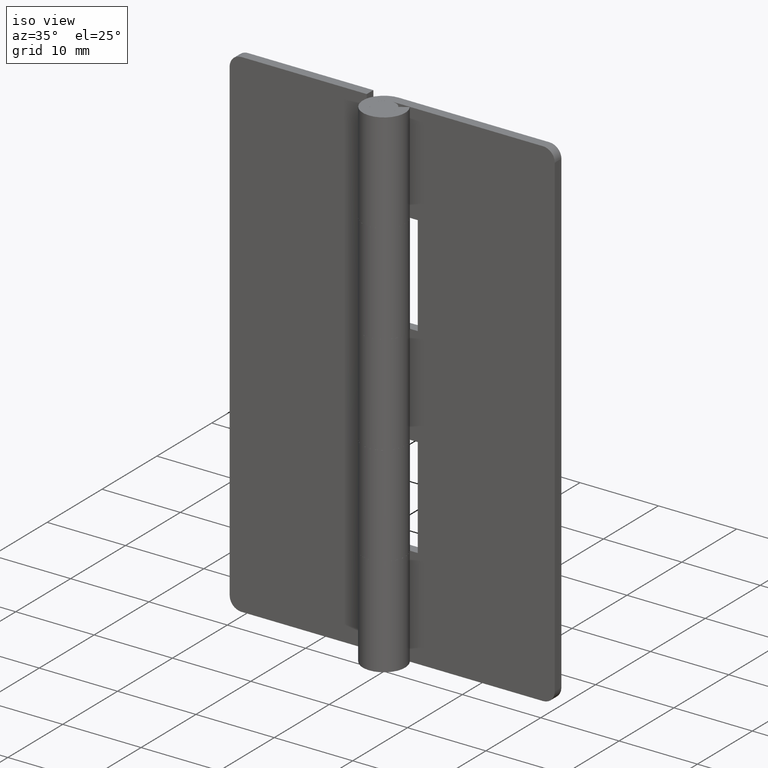
[diagram: clean part render]
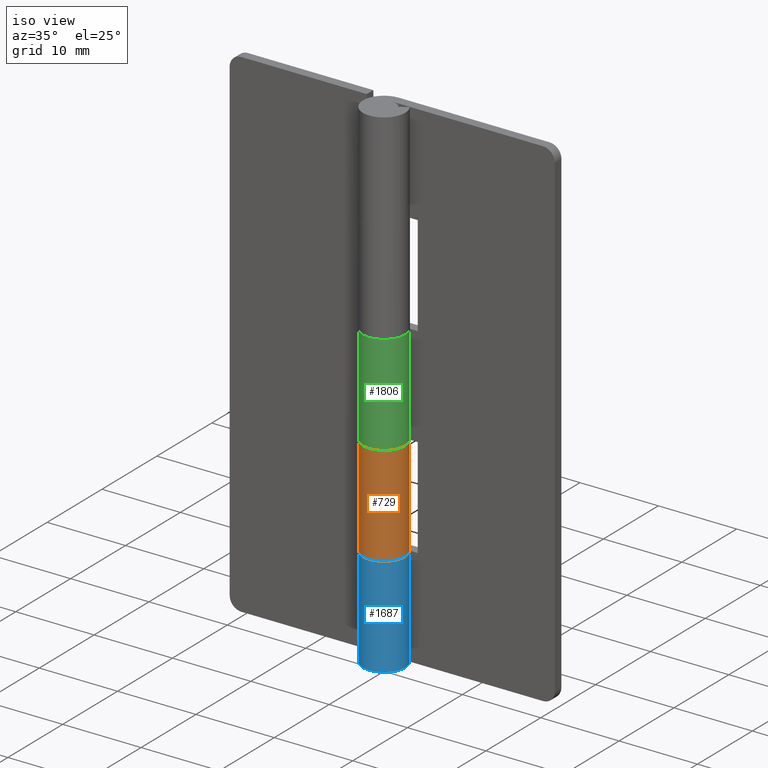
[diagram: same view with three faces highlighted in distinct colors, each labeled with its STEP entity id]
A machine part, iso view with three faces highlighted in distinct colors.
Their STEP definitions:

[orange] entity #729 — the highlighted face is a freeform B-spline surface patch.
#277=CARTESIAN_POINT('',(-2.277609580239995,1.450000000000000,25.599990999999900));
#278=VERTEX_POINT('',#277);
#279=CARTESIAN_POINT('',(0.0,2.700001000000000,25.599990999999900));
#280=VERTEX_POINT('',#279);
#281=CARTESIAN_POINT('',(-2.277609580239994,1.450000000000000,25.599990999999900));
#282=CARTESIAN_POINT('',(-3.402761166349925,-0.317348987411176,25.599990999999900));
#283=CARTESIAN_POINT('',(-1.970202425244974,-1.846160286529808,25.599990999999900));
#284=CARTESIAN_POINT('',(-0.537643684140022,-3.374971585648441,25.599990999999900));
#285=CARTESIAN_POINT('',(1.299038865854482,-2.366960799210773,25.599990999999900));
#286=CARTESIAN_POINT('',(3.135721415848985,-1.358950012773107,25.599990999999900));
#287=CARTESIAN_POINT('',(2.615416020906702,0.670525493613444,25.599990999999900));
#288=CARTESIAN_POINT('',(2.095110625964417,2.700001000000000,25.599990999999900));
#289=CARTESIAN_POINT('',(0.0,2.700001000000000,25.599990999999900));
#297=(BOUNDED_CURVE()B_SPLINE_CURVE(2,(#281,#282,#283,#284,#285,#286,#287,#288,#289),.UNSPECIFIED.,.F.,.U.)B_SPLINE_CURVE_WITH_KNOTS((3,2,2,2,3),(0.0,0.250000000000000,0.500000000000000,0.750000000000000,1.0),.UNSPECIFIED.)CURVE()GEOMETRIC_REPRESENTATION_ITEM()RATIONAL_B_SPLINE_CURVE((1.0,0.790045151695021,1.0,0.790045151695021,1.0,0.790045151695021,1.0,0.790045151695021,1.0))REPRESENTATION_ITEM(''));
#298=EDGE_CURVE('',#278,#280,#297,.T.);
#383=CARTESIAN_POINT('',(0.0,2.700001000000000,12.800003000000000));
#384=VERTEX_POINT('',#383);
#385=CARTESIAN_POINT('',(-2.277609580239995,1.450000000000000,12.800002999999940));
#386=VERTEX_POINT('',#385);
#387=CARTESIAN_POINT('',(0.0,2.700001000000000,12.800003000000000));
#388=CARTESIAN_POINT('',(2.095110625964414,2.700001000000000,12.800002999999936));
#389=CARTESIAN_POINT('',(2.615416020906701,0.670525493613448,12.800002999999940));
#390=CARTESIAN_POINT('',(3.135721415848987,-1.358950012773105,12.800002999999936));
#391=CARTESIAN_POINT('',(1.299038865854484,-2.366960799210772,12.800002999999940));
#392=CARTESIAN_POINT('',(-0.537643684140019,-3.374971585648440,12.800002999999936));
#393=CARTESIAN_POINT('',(-1.970202425244971,-1.846160286529811,12.800002999999940));
#394=CARTESIAN_POINT('',(-3.402761166349926,-0.317348987411180,12.800002999999936));
#395=CARTESIAN_POINT('',(-2.277609580239995,1.449999999999998,12.800002999999940));
#403=(BOUNDED_CURVE()B_SPLINE_CURVE(2,(#387,#388,#389,#390,#391,#392,#393,#394,#395),.UNSPECIFIED.,.F.,.U.)B_SPLINE_CURVE_WITH_KNOTS((3,2,2,2,3),(0.0,0.250000000000000,0.500000000000000,0.750000000000000,1.0),.UNSPECIFIED.)CURVE()GEOMETRIC_REPRESENTATION_ITEM()RATIONAL_B_SPLINE_CURVE((1.0,0.790045151695021,1.0,0.790045151695021,1.0,0.790045151695021,1.0,0.790045151695021,1.0))REPRESENTATION_ITEM(''));
#404=EDGE_CURVE('',#384,#386,#403,.T.);
#693=CARTESIAN_POINT('',(-2.238872525274995,1.509123989462019,25.919990699999911));
#694=CARTESIAN_POINT('',(-2.238872525274995,1.509123989462019,12.472003307499939));
#695=CARTESIAN_POINT('',(-4.113609718949111,-1.272156822676158,25.919990699999911));
#696=CARTESIAN_POINT('',(-4.113609718949111,-1.272156822676158,12.472003307499939));
#697=CARTESIAN_POINT('',(-0.996075208128227,-2.509549676685700,25.919990699999911));
#698=CARTESIAN_POINT('',(-0.996075208128227,-2.509549676685700,12.472003307499939));
#699=CARTESIAN_POINT('',(2.121459302692658,-3.746942530695243,25.919990699999911));
#700=CARTESIAN_POINT('',(2.121459302692658,-3.746942530695243,12.472003307499939));
#701=CARTESIAN_POINT('',(2.664393408355061,-0.437050529704626,25.919990699999911));
#702=CARTESIAN_POINT('',(2.664393408355061,-0.437050529704626,12.472003307499939));
#703=CARTESIAN_POINT('',(3.207327514017462,2.872841471285990,25.919990699999911));
#704=CARTESIAN_POINT('',(3.207327514017462,2.872841471285990,12.472003307499939));
#705=CARTESIAN_POINT('',(-0.142147113584253,2.696256589811262,25.919990699999911));
#706=CARTESIAN_POINT('',(-0.142147113584253,2.696256589811262,12.472003307499939));
#714=(BOUNDED_SURFACE()B_SPLINE_SURFACE(1,2,((#693,#695,#697,#699,#701,#703,#705),(#694,#696,#698,#700,#702,#704,#706)),.UNSPECIFIED.,.F.,.F.,.U.)B_SPLINE_SURFACE_WITH_KNOTS((2,2),(3,2,2,3),(0.0,13.447987392499970),(0.0,5.170632681176847,10.341265362353690,15.511898043530540),.UNSPECIFIED.)GEOMETRIC_REPRESENTATION_ITEM()RATIONAL_B_SPLINE_SURFACE(((1.0,0.627057105746662,1.0,0.627057105746662,1.0,0.627057105746662,1.0),(1.0,0.627057105746662,1.0,0.627057105746662,1.0,0.627057105746662,1.0)))REPRESENTATION_ITEM('')SURFACE());
#715=ORIENTED_EDGE('',*,*,#298,.F.);
#716=CARTESIAN_POINT('',(-2.277609580239995,1.450000000000000,25.599990999999900));
#717=CARTESIAN_POINT('',(-2.277609580239995,1.450000000000000,12.800002999999940));
#718=QUASI_UNIFORM_CURVE('',1,(#716,#717),.UNSPECIFIED.,.F.,.U.);
#719=EDGE_CURVE('',#278,#386,#718,.T.);
#720=ORIENTED_EDGE('',*,*,#719,.T.);
#721=ORIENTED_EDGE('',*,*,#404,.F.);
#722=CARTESIAN_POINT('',(0.0,2.700001000000000,25.599990999999900));
#723=CARTESIAN_POINT('',(0.0,2.700001000000000,12.800003000000000));
#724=QUASI_UNIFORM_CURVE('',1,(#722,#723),.UNSPECIFIED.,.F.,.U.);
#725=EDGE_CURVE('',#280,#384,#724,.T.);
#726=ORIENTED_EDGE('',*,*,#725,.F.);
#727=EDGE_LOOP('',(#715,#720,#721,#726));
#728=FACE_OUTER_BOUND('',#727,.T.);
#729=ADVANCED_FACE('',(#728),#714,.T.);

[blue] entity #1687 — the highlighted face is a freeform B-spline surface patch.
#1104=CARTESIAN_POINT('',(-4.959643E-016,2.700001000000000,12.800003000000000));
#1105=VERTEX_POINT('',#1104);
#1106=CARTESIAN_POINT('',(2.277608394786075,1.450000000000000,12.800002999999940));
#1107=VERTEX_POINT('',#1106);
#1108=CARTESIAN_POINT('',(-4.959643E-016,2.700001000000000,12.800003000000000));
#1109=CARTESIAN_POINT('',(-2.095110157115244,2.700001379652572,12.800003000000048));
#1110=CARTESIAN_POINT('',(-2.615415633023442,0.670525611543913,12.800003000000030));
#1111=CARTESIAN_POINT('',(-3.135721108931639,-1.358950156564745,12.800003000000023));
#1112=CARTESIAN_POINT('',(-1.299039008581215,-2.366961220879323,12.800002999999970));
#1113=CARTESIAN_POINT('',(0.537643091769208,-3.374972285193901,12.800002999999922));
#1114=CARTESIAN_POINT('',(1.970201480756562,-1.846160747254172,12.800002999999910));
#1115=CARTESIAN_POINT('',(3.402759869743917,-0.317349209314442,12.800002999999897));
#1116=CARTESIAN_POINT('',(2.277608394786075,1.450000000000000,12.800002999999940));
#1124=(BOUNDED_CURVE()B_SPLINE_CURVE(2,(#1108,#1109,#1110,#1111,#1112,#1113,#1114,#1115,#1116),.UNSPECIFIED.,.F.,.U.)B_SPLINE_CURVE_WITH_KNOTS((3,2,2,2,3),(0.0,0.250000000000000,0.500000000000000,0.750000000000000,1.0),.UNSPECIFIED.)CURVE()GEOMETRIC_REPRESENTATION_ITEM()RATIONAL_B_SPLINE_CURVE((1.0,0.790045133626194,1.0,0.790045133626194,1.0,0.790045133626194,1.0,0.790045133626194,1.0))REPRESENTATION_ITEM(''));
#1125=EDGE_CURVE('',#1105,#1107,#1124,.T.);
#1350=CARTESIAN_POINT('',(-4.959658E-016,2.700001000000000,0.0));
#1351=VERTEX_POINT('',#1350);
#1386=CARTESIAN_POINT('',(2.277608394786075,1.450000000000000,0.0));
#1387=VERTEX_POINT('',#1386);
#1393=CARTESIAN_POINT('',(2.277608394786075,1.450000000000000,0.0));
#1394=CARTESIAN_POINT('',(3.402759869743915,-0.317349209314442,0.0));
#1395=CARTESIAN_POINT('',(1.970201480756561,-1.846160747254171,0.0));
#1396=CARTESIAN_POINT('',(0.537643091769208,-3.374972285193899,0.0));
#1397=CARTESIAN_POINT('',(-1.299039008581214,-2.366961220879324,0.0));
#1398=CARTESIAN_POINT('',(-3.135721108931638,-1.358950156564748,0.0));
#1399=CARTESIAN_POINT('',(-2.615415633023442,0.670525611543911,0.0));
#1400=CARTESIAN_POINT('',(-2.095110157115246,2.700001379652570,0.0));
#1401=CARTESIAN_POINT('',(-4.959658E-016,2.700001000000000,0.0));
#1409=(BOUNDED_CURVE()B_SPLINE_CURVE(2,(#1393,#1394,#1395,#1396,#1397,#1398,#1399,#1400,#1401),.UNSPECIFIED.,.F.,.U.)B_SPLINE_CURVE_WITH_KNOTS((3,2,2,2,3),(0.0,0.250000000000000,0.500000000000000,0.750000000000000,1.0),.UNSPECIFIED.)CURVE()GEOMETRIC_REPRESENTATION_ITEM()RATIONAL_B_SPLINE_CURVE((1.0,0.790045133626194,1.0,0.790045133626194,1.0,0.790045133626194,1.0,0.790045133626194,1.0))REPRESENTATION_ITEM(''));
#1410=EDGE_CURVE('',#1387,#1351,#1409,.T.);
#1633=CARTESIAN_POINT('',(-4.959643E-016,2.700001000000000,12.800003000000000));
#1634=CARTESIAN_POINT('',(-4.959658E-016,2.700001000000000,0.0));
#1635=QUASI_UNIFORM_CURVE('',1,(#1633,#1634),.UNSPECIFIED.,.F.,.U.);
#1636=EDGE_CURVE('',#1105,#1351,#1635,.T.);
#1655=CARTESIAN_POINT('',(0.095068661787870,2.698326768489476,13.120003075000030));
#1656=CARTESIAN_POINT('',(0.095068661787870,2.698326768489476,-0.328000076875002));
#1657=CARTESIAN_POINT('',(-3.297193004988600,2.817844456584480,13.120003075000033));
#1658=CARTESIAN_POINT('',(-3.297193004988600,2.817844456584480,-0.328000076875002));
#1659=CARTESIAN_POINT('',(-2.650554623929066,-0.514359393390690,13.120003075000030));
#1660=CARTESIAN_POINT('',(-2.650554623929066,-0.514359393390690,-0.328000076875002));
#1661=CARTESIAN_POINT('',(-2.003916242869533,-3.846563243365861,13.120003075000033));
#1662=CARTESIAN_POINT('',(-2.003916242869533,-3.846563243365861,-0.328000076875002));
#1663=CARTESIAN_POINT('',(1.097421452709832,-2.466915392779662,13.120003075000030));
#1664=CARTESIAN_POINT('',(1.097421452709832,-2.466915392779662,-0.328000076875002));
#1665=CARTESIAN_POINT('',(4.198759148289196,-1.087267542193463,13.120003075000033));
#1666=CARTESIAN_POINT('',(4.198759148289196,-1.087267542193463,-0.328000076875002));
#1667=CARTESIAN_POINT('',(2.156822398235760,1.624229830556482,13.120003075000030));
#1668=CARTESIAN_POINT('',(2.156822398235760,1.624229830556482,-0.328000076875002));
#1676=(BOUNDED_SURFACE()B_SPLINE_SURFACE(1,2,((#1655,#1657,#1659,#1661,#1663,#1665,#1667),(#1656,#1658,#1660,#1662,#1664,#1666,#1668)),.UNSPECIFIED.,.F.,.F.,.U.)B_SPLINE_SURFACE_WITH_KNOTS((2,2),(3,2,2,3),(0.0,13.448003151875040),(0.0,5.209303530200724,10.418607060401451,15.627910590602170),.UNSPECIFIED.)GEOMETRIC_REPRESENTATION_ITEM()RATIONAL_B_SPLINE_SURFACE(((1.0,0.622514636637620,1.0,0.622514636637620,1.0,0.622514636637620,1.0),(1.0,0.622514636637620,1.0,0.622514636637620,1.0,0.622514636637620,1.0)))REPRESENTATION_ITEM('')SURFACE());
#1677=CARTESIAN_POINT('',(2.277608394786075,1.450000000000000,12.800002999999940));
#1678=CARTESIAN_POINT('',(2.277608394786075,1.450000000000000,0.0));
#1679=QUASI_UNIFORM_CURVE('',1,(#1677,#1678),.UNSPECIFIED.,.F.,.U.);
#1680=EDGE_CURVE('',#1107,#1387,#1679,.T.);
#1681=ORIENTED_EDGE('',*,*,#1680,.F.);
#1682=ORIENTED_EDGE('',*,*,#1125,.F.);
#1683=ORIENTED_EDGE('',*,*,#1636,.T.);
#1684=ORIENTED_EDGE('',*,*,#1410,.F.);
#1685=EDGE_LOOP('',(#1681,#1682,#1683,#1684));
#1686=FACE_OUTER_BOUND('',#1685,.T.);
#1687=ADVANCED_FACE('',(#1686),#1676,.T.);

[green] entity #1806 — the highlighted face is a freeform B-spline surface patch.
#998=CARTESIAN_POINT('',(2.277608394786075,1.450000000000000,25.600006000000000));
#999=VERTEX_POINT('',#998);
#1000=CARTESIAN_POINT('',(-4.959643E-016,2.700001000000000,25.600006000000000));
#1001=VERTEX_POINT('',#1000);
#1002=CARTESIAN_POINT('',(2.277608394786075,1.450000000000000,25.600006000000000));
#1003=CARTESIAN_POINT('',(3.402759869743915,-0.317349209314442,25.600005999999997));
#1004=CARTESIAN_POINT('',(1.970201480756561,-1.846160747254171,25.600006000000000));
#1005=CARTESIAN_POINT('',(0.537643091769208,-3.374972285193899,25.600005999999997));
#1006=CARTESIAN_POINT('',(-1.299039008581214,-2.366961220879324,25.600006000000000));
#1007=CARTESIAN_POINT('',(-3.135721108931638,-1.358950156564748,25.600005999999997));
#1008=CARTESIAN_POINT('',(-2.615415633023442,0.670525611543911,25.600006000000000));
#1009=CARTESIAN_POINT('',(-2.095110157115246,2.700001379652570,25.600005999999997));
#1010=CARTESIAN_POINT('',(-4.959643E-016,2.700001000000000,25.600006000000000));
#1018=(BOUNDED_CURVE()B_SPLINE_CURVE(2,(#1002,#1003,#1004,#1005,#1006,#1007,#1008,#1009,#1010),.UNSPECIFIED.,.F.,.U.)B_SPLINE_CURVE_WITH_KNOTS((3,2,2,2,3),(0.0,0.250000000000000,0.500000000000000,0.750000000000000,1.0),.UNSPECIFIED.)CURVE()GEOMETRIC_REPRESENTATION_ITEM()RATIONAL_B_SPLINE_CURVE((1.0,0.790045133626194,1.0,0.790045133626194,1.0,0.790045133626194,1.0,0.790045133626194,1.0))REPRESENTATION_ITEM(''));
#1019=EDGE_CURVE('',#999,#1001,#1018,.T.);
#1190=CARTESIAN_POINT('',(-4.959658E-016,2.700001000000000,38.399985999999963));
#1191=VERTEX_POINT('',#1190);
#1197=CARTESIAN_POINT('',(2.277609238344740,1.450000537037040,38.399985999999963));
#1198=VERTEX_POINT('',#1197);
#1199=CARTESIAN_POINT('',(0.0,2.700001000000000,38.399985999999963));
#1200=CARTESIAN_POINT('',(-2.095110753459990,2.700001000000000,38.399985999999963));
#1201=CARTESIAN_POINT('',(-2.615416060432463,0.670525339441350,38.399985999999963));
#1202=CARTESIAN_POINT('',(-3.135721367404935,-1.358950321117301,38.399985999999963));
#1203=CARTESIAN_POINT('',(-1.299038586801883,-2.366960952360805,38.399985999999963));
#1204=CARTESIAN_POINT('',(0.537644193801170,-3.374971583604309,38.399985999999963));
#1205=CARTESIAN_POINT('',(1.970202751724248,-1.846159938114572,38.399985999999963));
#1206=CARTESIAN_POINT('',(3.402761309647326,-0.317348292624834,38.399985999999963));
#1207=CARTESIAN_POINT('',(2.277609238344740,1.450000537037037,38.399985999999963));
#1215=(BOUNDED_CURVE()B_SPLINE_CURVE(2,(#1199,#1200,#1201,#1202,#1203,#1204,#1205,#1206,#1207),.UNSPECIFIED.,.F.,.U.)B_SPLINE_CURVE_WITH_KNOTS((3,2,2,2,3),(0.0,0.250000000000000,0.500000000000000,0.750000000000000,1.0),.UNSPECIFIED.)CURVE()GEOMETRIC_REPRESENTATION_ITEM()RATIONAL_B_SPLINE_CURVE((1.0,0.790045133626194,1.0,0.790045133626194,1.0,0.790045133626194,1.0,0.790045133626194,1.0))REPRESENTATION_ITEM(''));
#1216=EDGE_CURVE('',#1191,#1198,#1215,.T.);
#1534=CARTESIAN_POINT('',(2.277609238344740,1.450000537037040,38.399985999999963));
#1535=CARTESIAN_POINT('',(2.277608394786075,1.450000000000000,25.600006000000000));
#1536=QUASI_UNIFORM_CURVE('',1,(#1534,#1535),.UNSPECIFIED.,.F.,.U.);
#1537=EDGE_CURVE('',#1198,#999,#1536,.T.);
#1641=CARTESIAN_POINT('',(-4.959658E-016,2.700001000000000,38.399985999999963));
#1642=CARTESIAN_POINT('',(-4.959643E-016,2.700001000000000,25.600006000000000));
#1643=QUASI_UNIFORM_CURVE('',1,(#1641,#1642),.UNSPECIFIED.,.F.,.U.);
#1644=EDGE_CURVE('',#1191,#1001,#1643,.T.);
#1778=CARTESIAN_POINT('',(0.095068661787870,2.698326768489476,38.719985499999957));
#1779=CARTESIAN_POINT('',(0.095068661787870,2.698326768489476,25.272006512499999));
#1780=CARTESIAN_POINT('',(-3.297193004988600,2.817844456584480,38.719985499999972));
#1781=CARTESIAN_POINT('',(-3.297193004988600,2.817844456584480,25.272006512499999));
#1782=CARTESIAN_POINT('',(-2.650554623929066,-0.514359393390690,38.719985499999957));
#1783=CARTESIAN_POINT('',(-2.650554623929066,-0.514359393390690,25.272006512499999));
#1784=CARTESIAN_POINT('',(-2.003916242869533,-3.846563243365861,38.719985499999972));
#1785=CARTESIAN_POINT('',(-2.003916242869533,-3.846563243365861,25.272006512499999));
#1786=CARTESIAN_POINT('',(1.097421452709832,-2.466915392779662,38.719985499999957));
#1787=CARTESIAN_POINT('',(1.097421452709832,-2.466915392779662,25.272006512499999));
#1788=CARTESIAN_POINT('',(4.198759148289196,-1.087267542193463,38.719985499999972));
#1789=CARTESIAN_POINT('',(4.198759148289196,-1.087267542193463,25.272006512499999));
#1790=CARTESIAN_POINT('',(2.156822398235760,1.624229830556482,38.719985499999957));
#1791=CARTESIAN_POINT('',(2.156822398235760,1.624229830556482,25.272006512499999));
#1799=(BOUNDED_SURFACE()B_SPLINE_SURFACE(1,2,((#1778,#1780,#1782,#1784,#1786,#1788,#1790),(#1779,#1781,#1783,#1785,#1787,#1789,#1791)),.UNSPECIFIED.,.F.,.F.,.U.)B_SPLINE_SURFACE_WITH_KNOTS((2,2),(3,2,2,3),(0.0,13.447978987499971),(0.0,5.209303530200724,10.418607060401451,15.627910590602170),.UNSPECIFIED.)GEOMETRIC_REPRESENTATION_ITEM()RATIONAL_B_SPLINE_SURFACE(((1.0,0.622514636637620,1.0,0.622514636637620,1.0,0.622514636637620,1.0),(1.0,0.622514636637620,1.0,0.622514636637620,1.0,0.622514636637620,1.0)))REPRESENTATION_ITEM('')SURFACE());
#1800=ORIENTED_EDGE('',*,*,#1019,.F.);
#1801=ORIENTED_EDGE('',*,*,#1537,.F.);
#1802=ORIENTED_EDGE('',*,*,#1216,.F.);
#1803=ORIENTED_EDGE('',*,*,#1644,.T.);
#1804=EDGE_LOOP('',(#1800,#1801,#1802,#1803));
#1805=FACE_OUTER_BOUND('',#1804,.T.);
#1806=ADVANCED_FACE('',(#1805),#1799,.T.);